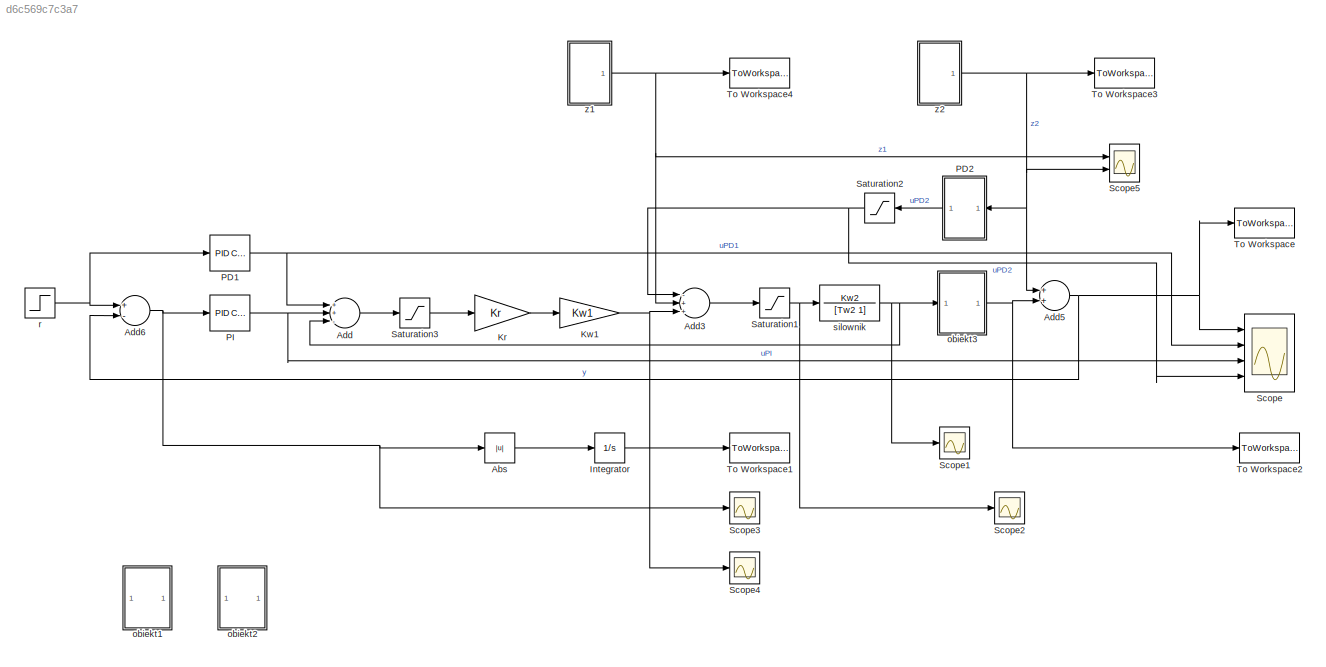
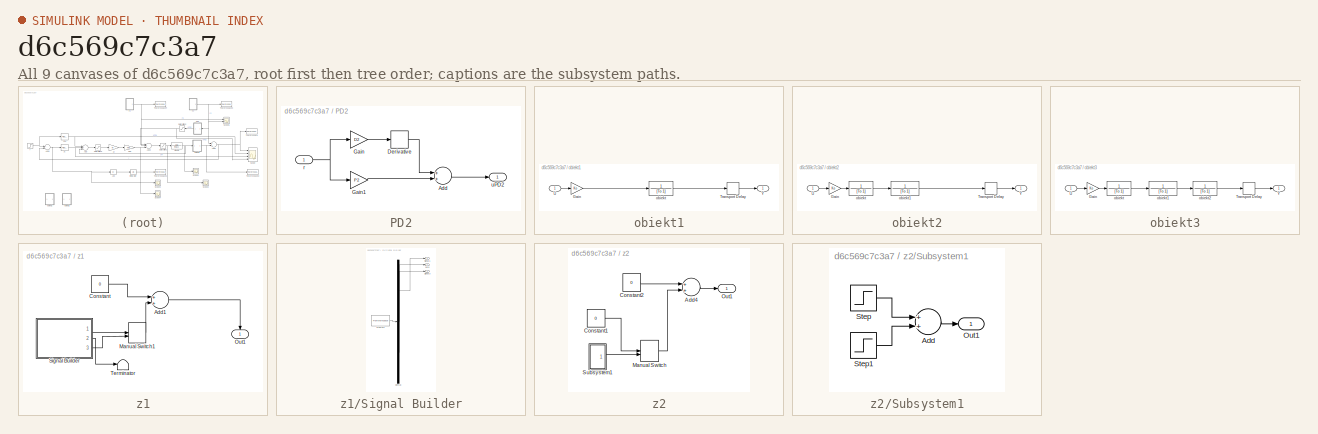
[diagram: thumbnail index - all 9 canvases of the model, root first then tree order]
MODEL slx_d6c569c7c3a7
KIND model
CONFIG AbsTol = auto
CONFIG FixedStep = 0.01
CONFIG MaxStep = auto
CONFIG MinStep = auto
CONFIG RelTol = 1e-3
CONFIG SampleTimeConstraint = Unconstrained
CONFIG Solver = ode4
CONFIG SolverMode = Auto
CONFIG SolverName = ode4
CONFIG StartTime = 0.0
CONFIG StopTime = 60
BLOCK [Abs] Abs
  SaturateOnIntegerOverflow = off
BLOCK [Sum] Add
  InputSameDT = off
  Inputs = ++-
  OutDataTypeStr = Inherit: Inherit via internal rule
  Ports = [3, 1]
  SaturateOnIntegerOverflow = off
BLOCK [Sum] Add3
  InputSameDT = off
  Inputs = -++
  OutDataTypeStr = Inherit: Inherit via internal rule
  Ports = [3, 1]
  SaturateOnIntegerOverflow = off
BLOCK [Sum] Add5
  InputSameDT = off
  OutDataTypeStr = Inherit: Inherit via internal rule
  Ports = [2, 1]
  SaturateOnIntegerOverflow = off
BLOCK [Sum] Add6
  InputSameDT = off
  Inputs = +-
  OutDataTypeStr = Inherit: Inherit via internal rule
  Ports = [2, 1]
  SaturateOnIntegerOverflow = off
BLOCK [Integrator] Integrator
  Ports = [1, 1]
BLOCK [Gain] Kr
  Gain = Kr
  OutDataTypeStr = Inherit: Inherit via internal rule
  ParamDataTypeStr = Inherit: Inherit via internal rule
  SaturateOnIntegerOverflow = off
BLOCK [Gain] Kw1 
  Gain = Kw1
  OutDataTypeStr = Inherit: Inherit via internal rule
  ParamDataTypeStr = Inherit: Inherit via internal rule
  SaturateOnIntegerOverflow = off
BLOCK [Reference] PD1  REF=simulink/Continuous/PID Controller
  Ports = [1, 1]
  SourceBlock = simulink/Continuous/PID Controller
  SourceType = PID 1dof
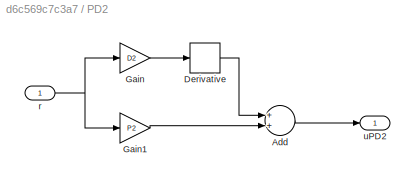
BLOCK [SubSystem] PD2
  Ports = [1, 1]
  RequestExecContextInheritance = off
  Variant = off
BLOCK [Sum] PD2/Add
  InputSameDT = off
  OutDataTypeStr = Inherit: Inherit via internal rule
  Ports = [2, 1]
  SaturateOnIntegerOverflow = off
BLOCK [Derivative] PD2/Derivative
BLOCK [Gain] PD2/Gain
  Gain = D2
  OutDataTypeStr = Inherit: Inherit via internal rule
  ParamDataTypeStr = Inherit: Inherit via internal rule
  SaturateOnIntegerOverflow = off
BLOCK [Gain] PD2/Gain1
  Gain = P2
  OutDataTypeStr = Inherit: Inherit via internal rule
  ParamDataTypeStr = Inherit: Inherit via internal rule
  SaturateOnIntegerOverflow = off
BLOCK [Inport] PD2/r
  IconDisplay = Port number
BLOCK [Outport] PD2/uPD2
  IconDisplay = Port number
BLOCK [Reference] PI  REF=simulink/Continuous/PID Controller
  Ports = [1, 1]
  SourceBlock = simulink/Continuous/PID Controller
  SourceType = PID 1dof
BLOCK [Saturate] Saturation1
  InputPortMap = u0
  LowerLimit = -limit2
  Ports = [1, 1]
  UpperLimit = limit2
BLOCK [Saturate] Saturation2
  InputPortMap = u0
  LowerLimit = -20
  Ports = [1, 1]
  UpperLimit = 20
BLOCK [Saturate] Saturation3
  InputPortMap = u0
  LowerLimit = -limit2
  Ports = [1, 1]
  UpperLimit = limit2
BLOCK [Scope] Scope
  NumInputPorts = 4
  Ports = [4]
  ScopeSpecificationString = Simulink.scopes.TimeScopeBlockCfg('CurrentConfiguration', extmgr.ConfigurationSet(extmgr.Configuration('Core','General UI',true),extmgr.Configuration('Core','Source UI',true),extmgr.Configuration('Sources','WiredSimulink',true,'DataLogging',true,'DataLoggingSaveFormat','StructureWithTime'),extmgr.Configuration('Visuals','Time Domain',true,'SerializedDisplays',{struct('MinYLimReal','-2.82298','MaxY...<+3471ch>
BLOCK [Scope] Scope1
  Ports = [1]
  ScopeSpecificationString = Simulink.scopes.TimeScopeBlockCfg('CurrentConfiguration', extmgr.ConfigurationSet(extmgr.Configuration('Core','General UI',true),extmgr.Configuration('Core','Source UI',true),extmgr.Configuration('Sources','WiredSimulink',true,'DataLoggingVariableName','ScopeData1'),extmgr.Configuration('Visuals','Time Domain',true,'SerializedDisplays',{struct('MinYLimReal','-3.4438','MaxYLimReal','30.99417','YLab...<+1442ch>
BLOCK [Scope] Scope2
  Ports = [1]
  ScopeSpecificationString = Simulink.scopes.TimeScopeBlockCfg('CurrentConfiguration', extmgr.ConfigurationSet(extmgr.Configuration('Core','General UI',true),extmgr.Configuration('Core','Source UI',true),extmgr.Configuration('Sources','WiredSimulink',true,'DataLoggingVariableName','ScopeData1'),extmgr.Configuration('Visuals','Time Domain',true,'SerializedDisplays',{struct('MinYLimReal','-42.9558','MaxYLimReal','-36.60221','YL...<+1446ch>
BLOCK [Scope] Scope3
  Ports = [1]
  ScopeSpecificationString = Simulink.scopes.TimeScopeBlockCfg('CurrentConfiguration', extmgr.ConfigurationSet(extmgr.Configuration('Core','General UI',true),extmgr.Configuration('Core','Source UI',true),extmgr.Configuration('Sources','WiredSimulink',true,'DataLoggingVariableName','ScopeData1'),extmgr.Configuration('Visuals','Time Domain',true,'SerializedDisplays',{struct('MinYLimReal','-8.12504','MaxYLimReal','23.125','YLabe...<+1415ch>
BLOCK [Scope] Scope4
  Ports = [1]
  ScopeSpecificationString = Simulink.scopes.TimeScopeBlockCfg('CurrentConfiguration', extmgr.ConfigurationSet(extmgr.Configuration('Core','General UI',true),extmgr.Configuration('Core','Source UI',true),extmgr.Configuration('Sources','WiredSimulink',true,'DataLoggingVariableName','ScopeData2'),extmgr.Configuration('Visuals','Time Domain',true,'SerializedDisplays',{struct('MinYLimReal','-0.14242','MaxYLimReal','1.28177','YLab...<+1437ch>
BLOCK [Scope] Scope5
  NumInputPorts = 2
  Ports = [2]
  ScopeSpecificationString = Simulink.scopes.TimeScopeBlockCfg('CurrentConfiguration', extmgr.ConfigurationSet(extmgr.Configuration('Core','General UI',true),extmgr.Configuration('Core','Source UI',true),extmgr.Configuration('Sources','WiredSimulink',true,'DataLoggingVariableName','ScopeData1','DataLogging',true,'DataLoggingSaveFormat','StructureWithTime'),extmgr.Configuration('Visuals','Time Domain',true,'SerializedDisplays'...<+2090ch>
BLOCK [ToWorkspace] To Workspace
  FixptAsFi = on
  MaxDataPoints = inf
  Ports = [1]
  SampleTime = -1
  Save2DSignal = 3-D array (concatenate along third dimension)
  SaveFormat = Timeseries
  VariableName = y
BLOCK [ToWorkspace] To Workspace1
  FixptAsFi = on
  MaxDataPoints = 1
  Ports = [1]
  SampleTime = -1
  Save2DSignal = 3-D array (concatenate along third dimension)
  VariableName = J
BLOCK [ToWorkspace] To Workspace2
  FixptAsFi = on
  MaxDataPoints = inf
  Ports = [1]
  SampleTime = -1
  Save2DSignal = 3-D array (concatenate along third dimension)
  SaveFormat = Timeseries
  VariableName = y1
BLOCK [ToWorkspace] To Workspace3
  FixptAsFi = on
  MaxDataPoints = inf
  Ports = [1]
  SampleTime = -1
  Save2DSignal = 3-D array (concatenate along third dimension)
  SaveFormat = Timeseries
  VariableName = z2
BLOCK [ToWorkspace] To Workspace4
  FixptAsFi = on
  MaxDataPoints = inf
  Ports = [1]
  SampleTime = -1
  Save2DSignal = 3-D array (concatenate along third dimension)
  SaveFormat = Timeseries
  VariableName = z1
BLOCK [SubSystem] obiekt1
  Commented = on
  Ports = [1, 1]
  RequestExecContextInheritance = off
  Variant = off
BLOCK [Gain] obiekt1/Gain
  Gain = Ko
  OutDataTypeStr = Inherit: Inherit via internal rule
  ParamDataTypeStr = Inherit: Inherit via internal rule
  SaturateOnIntegerOverflow = off
BLOCK [TransportDelay] obiekt1/Transport Delay
  DelayTime = tau
  Ports = [1, 1]
BLOCK [Inport] obiekt1/U
  IconDisplay = Port number
BLOCK [Outport] obiekt1/Y
  IconDisplay = Port number
BLOCK [TransferFcn] obiekt1/obiekt
  Denominator = [To 1]
  Numerator = 1
BLOCK [SubSystem] obiekt2
  Commented = on
  Ports = [1, 1]
  RequestExecContextInheritance = off
  Variant = off
BLOCK [Gain] obiekt2/Gain
  Gain = Ko
  OutDataTypeStr = Inherit: Inherit via internal rule
  ParamDataTypeStr = Inherit: Inherit via internal rule
  SaturateOnIntegerOverflow = off
BLOCK [TransportDelay] obiekt2/Transport Delay
  DelayTime = tau
  Ports = [1, 1]
BLOCK [Inport] obiekt2/U
  IconDisplay = Port number
BLOCK [Outport] obiekt2/Y
  IconDisplay = Port number
BLOCK [TransferFcn] obiekt2/obiekt
  Denominator = [To 1]
  Numerator = 1
BLOCK [TransferFcn] obiekt2/obiekt1
  Denominator = [To 1]
  Numerator = 1
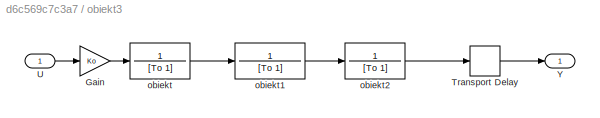
BLOCK [SubSystem] obiekt3
  Ports = [1, 1]
  RequestExecContextInheritance = off
  Variant = off
BLOCK [Gain] obiekt3/Gain
  Gain = Ko
  OutDataTypeStr = Inherit: Inherit via internal rule
  ParamDataTypeStr = Inherit: Inherit via internal rule
  SaturateOnIntegerOverflow = off
BLOCK [TransportDelay] obiekt3/Transport Delay
  DelayTime = tau
  Ports = [1, 1]
BLOCK [Inport] obiekt3/U
  IconDisplay = Port number
BLOCK [Outport] obiekt3/Y
  IconDisplay = Port number
BLOCK [TransferFcn] obiekt3/obiekt
  Denominator = [To 1]
  Numerator = 1
BLOCK [TransferFcn] obiekt3/obiekt1
  Denominator = [To 1]
  Numerator = 1
BLOCK [TransferFcn] obiekt3/obiekt2
  Denominator = [To 1]
  Numerator = 1
BLOCK [Step] r
  After = r
  SampleTime = 0
BLOCK [TransferFcn] silownik
  Denominator = [Tw2 1]
  Numerator = Kw2
BLOCK [SubSystem] z1
  Ports = [0, 1]
  RequestExecContextInheritance = off
  Variant = off
BLOCK [Sum] z1/Add1
  InputSameDT = off
  OutDataTypeStr = Inherit: Inherit via internal rule
  Ports = [2, 1]
  SaturateOnIntegerOverflow = off
BLOCK [Constant] z1/Constant
  Value = 0
BLOCK [ManualSwitch] z1/Manual Switch1
BLOCK [Outport] z1/Out1
  IconDisplay = Port number
BLOCK [SubSystem] z1/Signal Builder
  ClipboardFcn = sigbuilder_block('clipboard');
  CloseFcn = sigbuilder_block('close');
  ContinueFcn = sigbuilder_block('continue');
  CopyFcn = sigbuilder_block('copy');
  DeleteFcn = sigbuilder_block('delete');
  LoadFcn = sigbuilder_block('load');
  MaskHideContents = on
  ModelCloseFcn = sigbuilder_block('modelClose');
  NameChangeFcn = sigbuilder_block('namechange');
  OpenFcn = sigbuilder_block('open',[1542.6 -54.6 1012.8 448.2 ]);
  PauseFcn = sigbuilder_block('pause');
  Ports = [0, 3]
  PreSaveFcn = sigbuilder_block('preSave');
  RequestExecContextInheritance = off
  StartFcn = sigbuilder_block('start');
  StopFcn = sigbuilder_block('stop');
  Tag = STV Subsys
  Variant = off
BLOCK [Demux] z1/Signal Builder/Demux
  Outputs = 3
  Ports = [1, 3]
  Tag = STV Demux
BLOCK [FromWorkspace] z1/Signal Builder/FromWs
  SampleTime = 0.01
  Tag = STV FromWs
  VariableName = tuvar
  ZeroCross = on
BLOCK [Outport] z1/Signal Builder/Signal 1
  IconDisplay = Port number
  Tag = STV Outport
BLOCK [Outport] z1/Signal Builder/Signal 3
  IconDisplay = Port number
  Port = 3
  Tag = STV Outport
BLOCK [Outport] z1/Signal Builder/zero
  IconDisplay = Port number
  Port = 2
  Tag = STV Outport
BLOCK [Terminator] z1/Terminator
BLOCK [SubSystem] z2
  Ports = [0, 1]
  RequestExecContextInheritance = off
  Variant = off
BLOCK [Sum] z2/Add4
  InputSameDT = off
  OutDataTypeStr = Inherit: Inherit via internal rule
  Ports = [2, 1]
  SaturateOnIntegerOverflow = off
BLOCK [Constant] z2/Constant1
  Value = 0
BLOCK [Constant] z2/Constant2
  Value = 0
BLOCK [ManualSwitch] z2/Manual Switch
  CurrentSetting = 0
BLOCK [Outport] z2/Out1
  IconDisplay = Port number
BLOCK [SubSystem] z2/Subsystem1
  Ports = [0, 1]
  RequestExecContextInheritance = off
  Variant = off
BLOCK [Sum] z2/Subsystem1/Add
  InputSameDT = off
  OutDataTypeStr = Inherit: Inherit via internal rule
  Ports = [2, 1]
  SaturateOnIntegerOverflow = off
BLOCK [Outport] z2/Subsystem1/Out1
  IconDisplay = Port number
BLOCK [Step] z2/Subsystem1/Step
  After = 5
  SampleTime = 0
  Time = 20
BLOCK [Step] z2/Subsystem1/Step1
  After = -5
  SampleTime = 0
  Time = 30
LINE Abs:1 -> Integrator:1
LINE Add3:1 -> Saturation1:1
NET Add5:1 -> Add6:2, Scope:1, To Workspace:1
NET Add6:1 -> Abs:1, PI:1, Scope3:1
LINE Add:1 -> Saturation3:1
LINE Integrator:1 -> To Workspace1:1
LINE Kr:1 -> Kw1 :1
NET Kw1 :1 -> Add3:3, Scope4:1
NET PD1:1 -> Add:1, Scope:2
LINE PD2/Add:1 -> PD2/uPD2:1
LINE PD2/Derivative:1 -> PD2/Add:1
LINE PD2/Gain1:1 -> PD2/Add:2
LINE PD2/Gain:1 -> PD2/Derivative:1
NET PD2/r:1 -> PD2/Gain1:1, PD2/Gain:1
LINE PD2:1 -> Saturation2:1
NET PI:1 -> Add:2, Scope:3
NET Saturation1:1 -> Scope2:1, silownik:1
NET Saturation2:1 -> Add3:1, Scope:4
LINE Saturation3:1 -> Kr:1
LINE obiekt1/Gain:1 -> obiekt1/obiekt:1
LINE obiekt1/Transport Delay:1 -> obiekt1/Y:1
LINE obiekt1/U:1 -> obiekt1/Gain:1
LINE obiekt1/obiekt:1 -> obiekt1/Transport Delay:1
LINE obiekt2/Gain:1 -> obiekt2/obiekt:1
LINE obiekt2/Transport Delay:1 -> obiekt2/Y:1
LINE obiekt2/U:1 -> obiekt2/Gain:1
LINE obiekt2/obiekt1:1 -> obiekt2/Transport Delay:1
LINE obiekt2/obiekt:1 -> obiekt2/obiekt1:1
LINE obiekt3/Gain:1 -> obiekt3/obiekt:1
LINE obiekt3/Transport Delay:1 -> obiekt3/Y:1
LINE obiekt3/U:1 -> obiekt3/Gain:1
LINE obiekt3/obiekt1:1 -> obiekt3/obiekt2:1
LINE obiekt3/obiekt2:1 -> obiekt3/Transport Delay:1
LINE obiekt3/obiekt:1 -> obiekt3/obiekt1:1
NET obiekt3:1 -> Add5:2, To Workspace2:1
NET r:1 -> Add6:1, PD1:1
NET silownik:1 -> Add:3, Scope1:1, obiekt3:1
LINE z1/Add1:1 -> z1/Out1:1
LINE z1/Constant:1 -> z1/Add1:1
LINE z1/Manual Switch1:1 -> z1/Add1:2
LINE z1/Signal Builder:1 -> z1/Manual Switch1:1
LINE z1/Signal Builder:2 -> z1/Terminator:1
LINE z1/Signal Builder:3 -> z1/Manual Switch1:2
NET z1:1 -> Add3:2, Scope5:1, To Workspace4:1
LINE z2/Add4:1 -> z2/Out1:1
LINE z2/Constant1:1 -> z2/Manual Switch:1
LINE z2/Constant2:1 -> z2/Add4:1
LINE z2/Manual Switch:1 -> z2/Add4:2
LINE z2/Subsystem1/Add:1 -> z2/Subsystem1/Out1:1
LINE z2/Subsystem1/Step1:1 -> z2/Subsystem1/Add:2
LINE z2/Subsystem1/Step:1 -> z2/Subsystem1/Add:1
LINE z2/Subsystem1:1 -> z2/Manual Switch:2
NET z2:1 -> Add5:1, PD2:1, Scope5:2, To Workspace3:1
note: NET lines group one-source signal fan-out (src -> all destinations, sorted); 1:1 wires keep LINE
